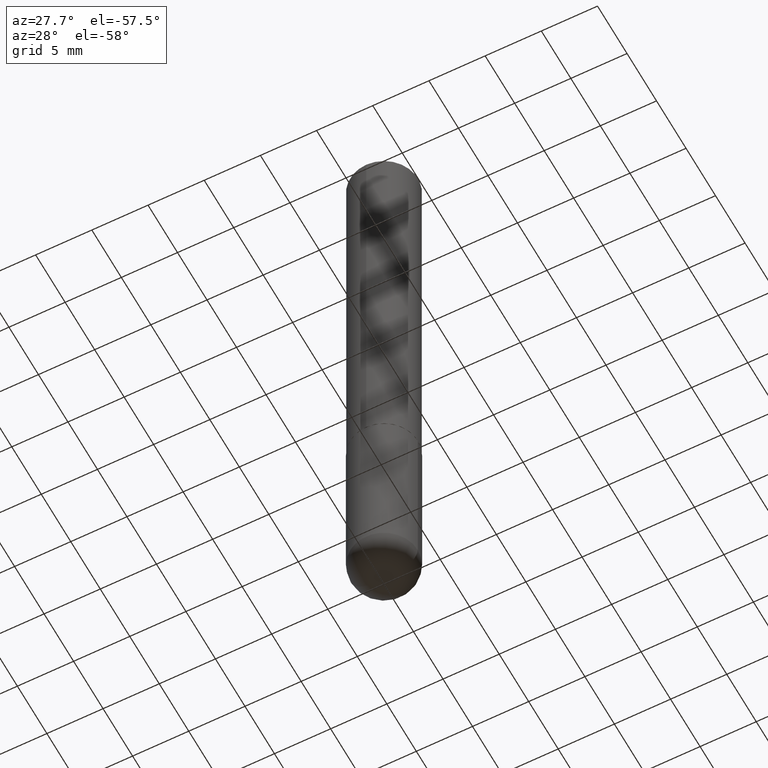
[diagram: clean part render]
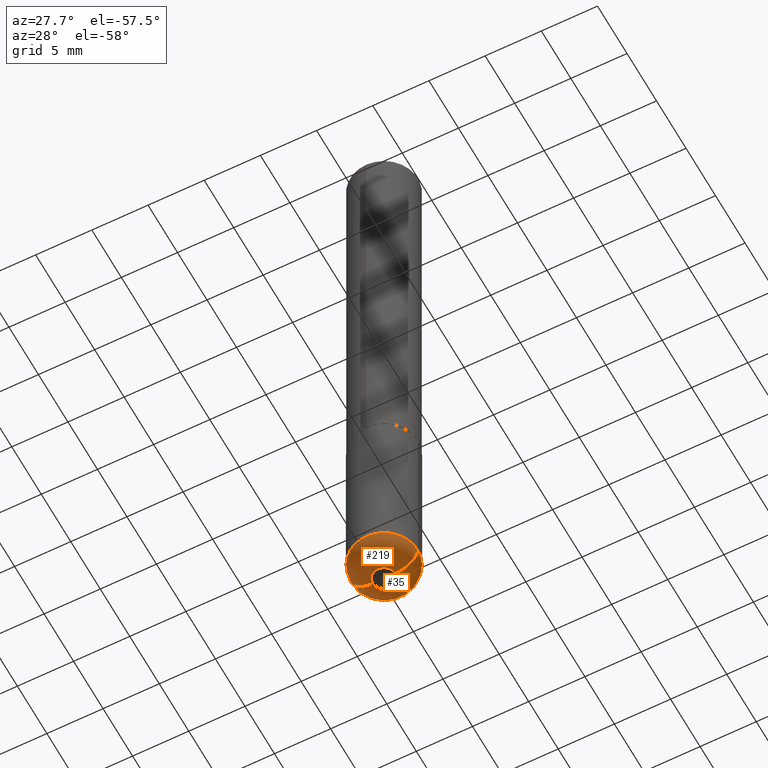
[diagram: same view with one multi-face feature highlighted, each face labeled with its STEP entity id]
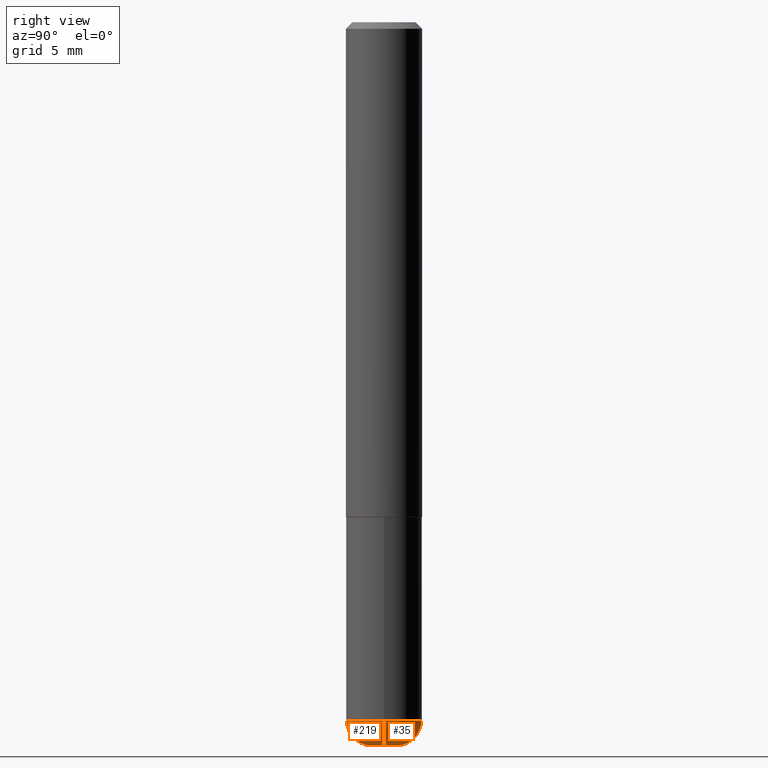
[diagram: same view with one multi-face feature highlighted, each face labeled with its STEP entity id]
A machine part, auxiliary view. The highlighted faces form ONE feature: a constant-radius fillet chain: 2 tangent blend faces with common blend radius 1.999 mm. The faces share edges in the B-rep.
A second angle (right view) of the same feature is appended — it is thin or edge-on in the first view.
Their STEP definitions:
[1] entity #219 (Torus):
#15 = VERTEX_POINT ( 'NONE', #251 ) ;
#20 = ORIENTED_EDGE ( 'NONE', *, *, #139, .F. ) ;
#23 = TOROIDAL_SURFACE ( 'NONE', #100, 0.03939999999999999752, 0.07869999999999995055 ) ;
#25 = DIRECTION ( 'NONE',  ( 1.000000000000000000, -6.982962677686265133E-15, 0.000000000000000000 ) ) ;
#54 = FACE_OUTER_BOUND ( 'NONE', #402, .T. ) ;
#57 = VERTEX_POINT ( 'NONE', #70 ) ;
#70 = CARTESIAN_POINT ( 'NONE',  ( 0.1180999999999999689, -8.385141583365694108E-15, -2.165399999999999991 ) ) ;
#73 = ORIENTED_EDGE ( 'NONE', *, *, #348, .T. ) ;
#74 = ORIENTED_EDGE ( 'NONE', *, *, #284, .T. ) ;
#93 = DIRECTION ( 'NONE',  ( 1.000000000000000000, -6.982962677686261977E-15, 0.000000000000000000 ) ) ;
#100 = AXIS2_PLACEMENT_3D ( 'NONE', #418, #297, #123 ) ;
#109 = AXIS2_PLACEMENT_3D ( 'NONE', #232, #268, #93 ) ;
#122 = DIRECTION ( 'NONE',  ( -2.445468806185136597E-29, 3.491481338843145583E-15, 1.000000000000000000 ) ) ;
#123 = DIRECTION ( 'NONE',  ( 1.000000000000000000, -6.982962677686267499E-15, 4.883557194083113462E-29 ) ) ;
#127 = CARTESIAN_POINT ( 'NONE',  ( -0.03939999999999999752, -7.280499853241468805E-15, -2.165399999999999991 ) ) ;
#136 = CIRCLE ( 'NONE', #109, 0.07869999999999995055 ) ;
#139 = EDGE_CURVE ( 'NONE', #305, #57, #315, .T. ) ;
#158 = DIRECTION ( 'NONE',  ( -2.445468806185136597E-29, 3.491481338843145583E-15, 1.000000000000000000 ) ) ;
#163 = EDGE_CURVE ( 'NONE', #223, #305, #177, .T. ) ;
#177 = CIRCLE ( 'NONE', #283, 0.07869999999999995055 ) ;
#185 = CIRCLE ( 'NONE', #277, 0.03940000000000000446 ) ;
#203 = AXIS2_PLACEMENT_3D ( 'NONE', #294, #158, #25 ) ;
#219 = ADVANCED_FACE ( 'NONE', ( #54 ), #23, .T. ) ;
#223 = VERTEX_POINT ( 'NONE', #267 ) ;
#232 = CARTESIAN_POINT ( 'NONE',  ( 0.03939999999999999752, -7.835582420631785852E-15, -2.165399999999999991 ) ) ;
#251 = CARTESIAN_POINT ( 'NONE',  ( 0.03940000000000000446, -8.110362001998742346E-15, -2.244099999999999984 ) ) ;
#267 = CARTESIAN_POINT ( 'NONE',  ( -0.03940000000000000446, -7.138291077403347657E-15, -2.244099999999999984 ) ) ;
#268 = DIRECTION ( 'NONE',  ( -6.982962677686266711E-15, -1.000000000000000000, 3.491481338843145583E-15 ) ) ;
#277 = AXIS2_PLACEMENT_3D ( 'NONE', #323, #122, #357 ) ;
#283 = AXIS2_PLACEMENT_3D ( 'NONE', #127, #351, #327 ) ;
#284 = EDGE_CURVE ( 'NONE', #223, #15, #185, .T. ) ;
#294 = CARTESIAN_POINT ( 'NONE',  ( 5.295418152913295466E-29, -7.560453691130947423E-15, -2.165399999999999991 ) ) ;
#297 = DIRECTION ( 'NONE',  ( -2.445468806185136597E-29, 3.491481338843145583E-15, 1.000000000000000000 ) ) ;
#305 = VERTEX_POINT ( 'NONE', #393 ) ;
#315 = CIRCLE ( 'NONE', #203, 0.1180999999999999966 ) ;
#323 = CARTESIAN_POINT ( 'NONE',  ( 5.487876547960064752E-29, -7.835233272497902340E-15, -2.244099999999999984 ) ) ;
#327 = DIRECTION ( 'NONE',  ( -1.000000000000000000, 7.105427357600997126E-15, 0.000000000000000000 ) ) ;
#348 = EDGE_CURVE ( 'NONE', #15, #57, #136, .T. ) ;
#351 = DIRECTION ( 'NONE',  ( 7.105427357601001859E-15, 1.000000000000000000, -3.491481338843145583E-15 ) ) ;
#357 = DIRECTION ( 'NONE',  ( 1.000000000000000000, -6.982962677686277755E-15, 0.000000000000000000 ) ) ;
#374 = ORIENTED_EDGE ( 'NONE', *, *, #163, .F. ) ;
#393 = CARTESIAN_POINT ( 'NONE',  ( -0.1180999999999999689, -6.721302720198270015E-15, -2.165399999999999991 ) ) ;
#402 = EDGE_LOOP ( 'NONE', ( #374, #74, #73, #20 ) ) ;
#418 = CARTESIAN_POINT ( 'NONE',  ( 5.295418152913295466E-29, -7.560453691130947423E-15, -2.165399999999999991 ) ) ;
[2] entity #35 (Torus):
#15 = VERTEX_POINT ( 'NONE', #251 ) ;
#35 = ADVANCED_FACE ( 'NONE', ( #307 ), #228, .T. ) ;
#50 = CARTESIAN_POINT ( 'NONE',  ( 5.487876547960064752E-29, -7.835233272497902340E-15, -2.244099999999999984 ) ) ;
#57 = VERTEX_POINT ( 'NONE', #70 ) ;
#61 = ORIENTED_EDGE ( 'NONE', *, *, #332, .F. ) ;
#70 = CARTESIAN_POINT ( 'NONE',  ( 0.1180999999999999689, -8.385141583365694108E-15, -2.165399999999999991 ) ) ;
#83 = EDGE_CURVE ( 'NONE', #15, #223, #292, .T. ) ;
#93 = DIRECTION ( 'NONE',  ( 1.000000000000000000, -6.982962677686261977E-15, 0.000000000000000000 ) ) ;
#94 = CARTESIAN_POINT ( 'NONE',  ( 5.295418152913295466E-29, -7.560453691130947423E-15, -2.165399999999999991 ) ) ;
#109 = AXIS2_PLACEMENT_3D ( 'NONE', #232, #268, #93 ) ;
#111 = DIRECTION ( 'NONE',  ( 1.000000000000000000, -6.982962677686267499E-15, 4.883557194083113462E-29 ) ) ;
#127 = CARTESIAN_POINT ( 'NONE',  ( -0.03939999999999999752, -7.280499853241468805E-15, -2.165399999999999991 ) ) ;
#133 = AXIS2_PLACEMENT_3D ( 'NONE', #50, #149, #210 ) ;
#136 = CIRCLE ( 'NONE', #109, 0.07869999999999995055 ) ;
#140 = ORIENTED_EDGE ( 'NONE', *, *, #163, .T. ) ;
#146 = ORIENTED_EDGE ( 'NONE', *, *, #83, .T. ) ;
#149 = DIRECTION ( 'NONE',  ( -2.445468806185136597E-29, 3.491481338843145583E-15, 1.000000000000000000 ) ) ;
#163 = EDGE_CURVE ( 'NONE', #223, #305, #177, .T. ) ;
#177 = CIRCLE ( 'NONE', #283, 0.07869999999999995055 ) ;
#198 = DIRECTION ( 'NONE',  ( -2.445468806185136597E-29, 3.491481338843145583E-15, 1.000000000000000000 ) ) ;
#210 = DIRECTION ( 'NONE',  ( 1.000000000000000000, -6.982962677686277755E-15, 0.000000000000000000 ) ) ;
#223 = VERTEX_POINT ( 'NONE', #267 ) ;
#228 = TOROIDAL_SURFACE ( 'NONE', #306, 0.03939999999999999752, 0.07869999999999995055 ) ;
#232 = CARTESIAN_POINT ( 'NONE',  ( 0.03939999999999999752, -7.835582420631785852E-15, -2.165399999999999991 ) ) ;
#251 = CARTESIAN_POINT ( 'NONE',  ( 0.03940000000000000446, -8.110362001998742346E-15, -2.244099999999999984 ) ) ;
#267 = CARTESIAN_POINT ( 'NONE',  ( -0.03940000000000000446, -7.138291077403347657E-15, -2.244099999999999984 ) ) ;
#268 = DIRECTION ( 'NONE',  ( -6.982962677686266711E-15, -1.000000000000000000, 3.491481338843145583E-15 ) ) ;
#283 = AXIS2_PLACEMENT_3D ( 'NONE', #127, #351, #327 ) ;
#292 = CIRCLE ( 'NONE', #133, 0.03940000000000000446 ) ;
#305 = VERTEX_POINT ( 'NONE', #393 ) ;
#306 = AXIS2_PLACEMENT_3D ( 'NONE', #337, #409, #111 ) ;
#307 = FACE_OUTER_BOUND ( 'NONE', #321, .T. ) ;
#317 = ORIENTED_EDGE ( 'NONE', *, *, #348, .F. ) ;
#321 = EDGE_LOOP ( 'NONE', ( #146, #140, #61, #317 ) ) ;
#327 = DIRECTION ( 'NONE',  ( -1.000000000000000000, 7.105427357600997126E-15, 0.000000000000000000 ) ) ;
#329 = CIRCLE ( 'NONE', #381, 0.1180999999999999966 ) ;
#332 = EDGE_CURVE ( 'NONE', #57, #305, #329, .T. ) ;
#337 = CARTESIAN_POINT ( 'NONE',  ( 5.295418152913295466E-29, -7.560453691130947423E-15, -2.165399999999999991 ) ) ;
#348 = EDGE_CURVE ( 'NONE', #15, #57, #136, .T. ) ;
#351 = DIRECTION ( 'NONE',  ( 7.105427357601001859E-15, 1.000000000000000000, -3.491481338843145583E-15 ) ) ;
#360 = DIRECTION ( 'NONE',  ( 1.000000000000000000, -6.982962677686265133E-15, 0.000000000000000000 ) ) ;
#381 = AXIS2_PLACEMENT_3D ( 'NONE', #94, #198, #360 ) ;
#393 = CARTESIAN_POINT ( 'NONE',  ( -0.1180999999999999689, -6.721302720198270015E-15, -2.165399999999999991 ) ) ;
#409 = DIRECTION ( 'NONE',  ( -2.445468806185136597E-29, 3.491481338843145583E-15, 1.000000000000000000 ) ) ;